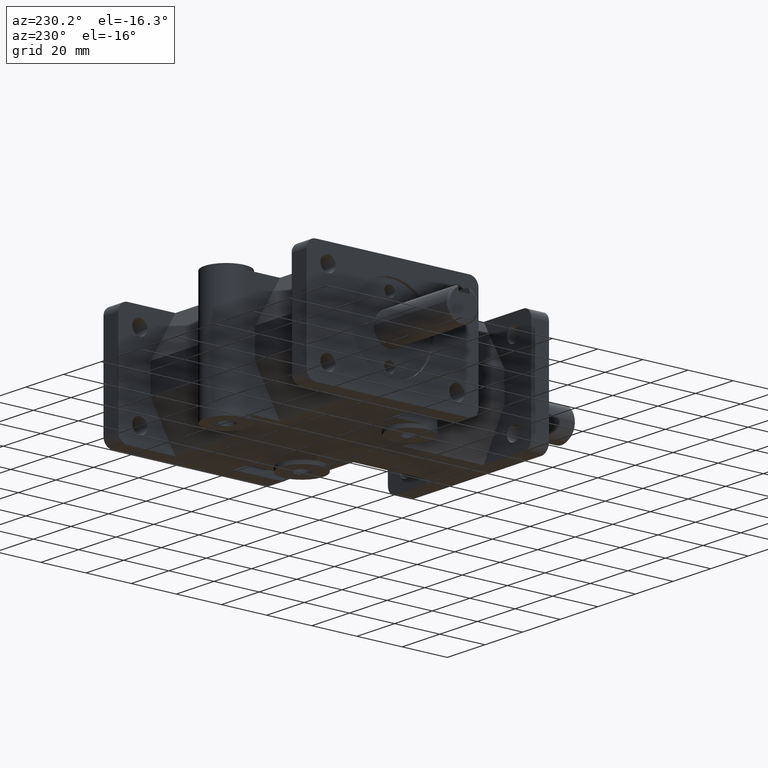
[diagram: clean part render]
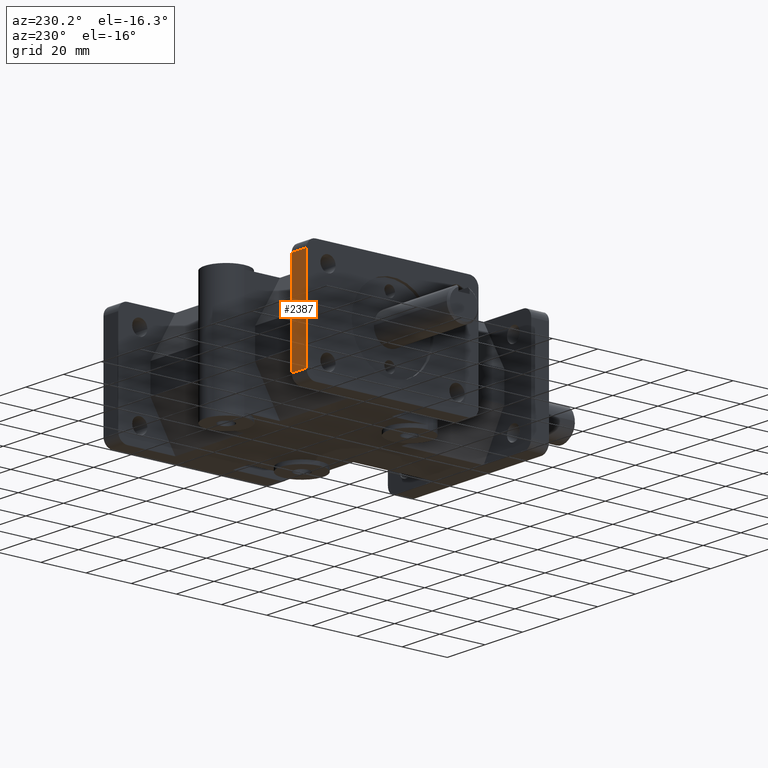
[diagram: same view with one face highlighted and labeled with its STEP entity id]
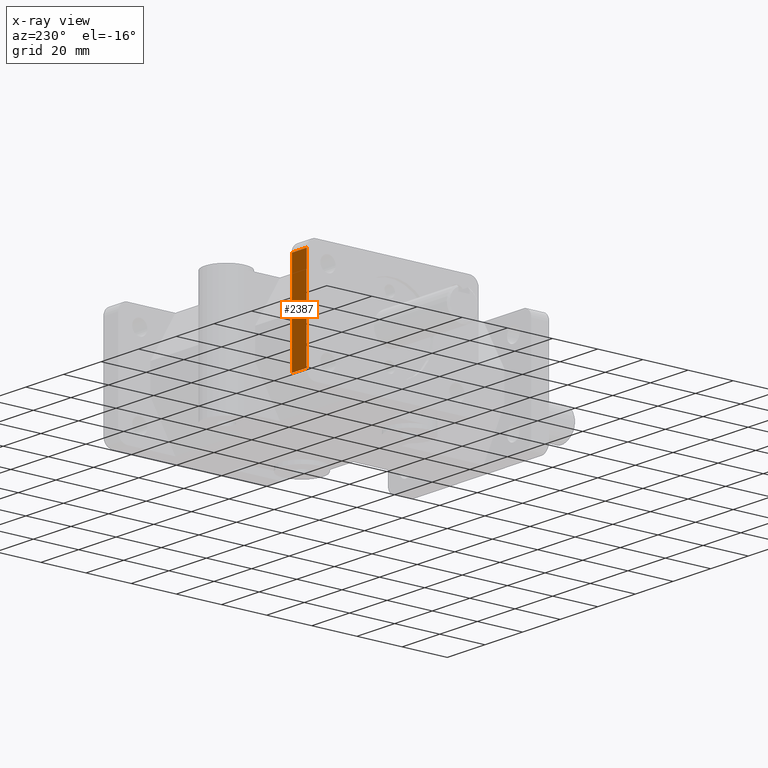
[diagram: x-ray of the same camera — body ghosted, the highlighted face saturated]
A machine part, auxiliary view. The second image highlights one B-rep face of the part: STEP entity #2387.
The next image is the same camera in x-ray: the body ghosted, the highlighted face saturated — about 0% of this face is hidden behind the body in this view.
In plain terms, the highlighted planar face has unit normal (0, 1, 0).
Its self-contained STEP definition (entity closure, byte-faithful):
#140=PLANE('',#2636);
#268=FACE_OUTER_BOUND('',#434,.T.);
#434=EDGE_LOOP('',(#2156,#2157,#2158,#2159));
#510=LINE('',#3605,#732);
#513=LINE('',#3617,#735);
#563=LINE('',#3742,#785);
#663=LINE('',#4016,#885);
#732=VECTOR('',#2903,1.);
#735=VECTOR('',#2914,1.);
#785=VECTOR('',#3014,1.);
#885=VECTOR('',#3308,1.);
#1089=VERTEX_POINT('',#3602);
#1090=VERTEX_POINT('',#3604);
#1092=VERTEX_POINT('',#3610);
#1095=VERTEX_POINT('',#3615);
#1337=EDGE_CURVE('',#1089,#1090,#510,.T.);
#1343=EDGE_CURVE('',#1095,#1092,#513,.T.);
#1410=EDGE_CURVE('',#1092,#1089,#563,.T.);
#1546=EDGE_CURVE('',#1095,#1090,#663,.T.);
#2156=ORIENTED_EDGE('',*,*,#1337,.F.);
#2157=ORIENTED_EDGE('',*,*,#1410,.F.);
#2158=ORIENTED_EDGE('',*,*,#1343,.F.);
#2159=ORIENTED_EDGE('',*,*,#1546,.T.);
#2387=ADVANCED_FACE('',(#268),#140,.T.);
#2636=AXIS2_PLACEMENT_3D('',#4017,#3309,#3310);
#2903=DIRECTION('',(1.,0.,0.));
#2914=DIRECTION('',(-1.,0.,0.));
#3014=DIRECTION('',(0.,0.,-1.));
#3308=DIRECTION('',(0.,0.,-1.));
#3309=DIRECTION('center_axis',(0.,1.,0.));
#3310=DIRECTION('ref_axis',(0.,0.,-1.));
#3602=CARTESIAN_POINT('',(-53.975,120.65,-21.336));
#3604=CARTESIAN_POINT('',(-46.101,120.65,-21.336));
#3605=CARTESIAN_POINT('',(-23.0505,120.65,-21.336));
#3610=CARTESIAN_POINT('',(-53.975,120.65,21.336));
#3615=CARTESIAN_POINT('',(-46.101,120.65,21.336));
#3617=CARTESIAN_POINT('',(-23.0505,120.65,21.336));
#3742=CARTESIAN_POINT('',(-53.975,120.65,0.));
#4016=CARTESIAN_POINT('',(-46.101,120.65,0.));
#4017=CARTESIAN_POINT('Origin',(-46.101,120.65,0.));